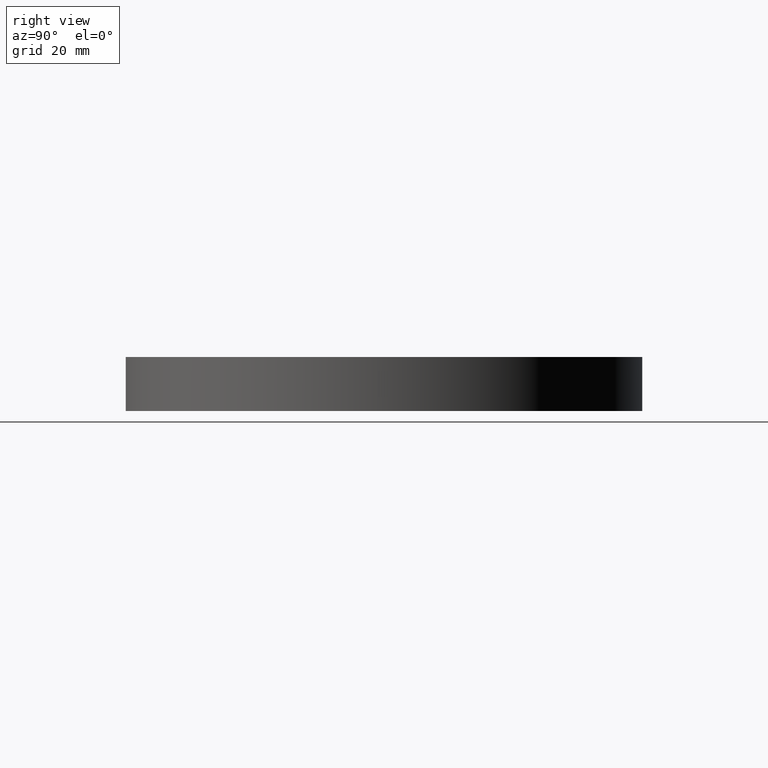
[diagram: clean part render]
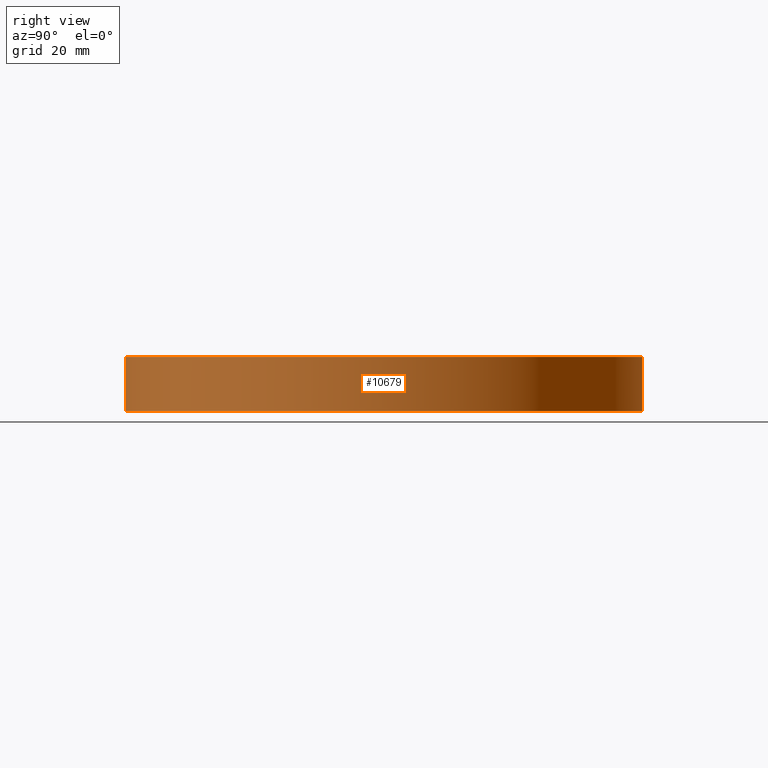
[diagram: same view with one face highlighted and labeled with its STEP entity id]
A machine part, right view. The second image highlights one B-rep face of the part: STEP entity #10679.
In plain terms, the highlighted cylindrical surface (partial cylindrical patch) has radius 57.5 mm, axis along (-0, -0, -1).
Its self-contained STEP definition (entity closure, byte-faithful):
#425 = AXIS2_PLACEMENT_3D ( 'NONE', #8660, #7016, #2937 ) ;
#1138 = VERTEX_POINT ( 'NONE', #10441 ) ;
#1173 = DIRECTION ( 'NONE',  ( -0.0000000000000000000, -0.0000000000000000000, -1.000000000000000000 ) ) ;
#1568 = CARTESIAN_POINT ( 'NONE',  ( 0.5000000000000000000, 57.49782604586020800, -5.999999999999998200 ) ) ;
#2510 = VECTOR ( 'NONE', #8754, 1000.000000000000000 ) ;
#2832 = CARTESIAN_POINT ( 'NONE',  ( 0.0000000000000000000, 0.0000000000000000000, 0.0000000000000000000 ) ) ;
#2937 = DIRECTION ( 'NONE',  ( -1.000000000000000000, 0.0000000000000000000, 0.0000000000000000000 ) ) ;
#4478 = EDGE_CURVE ( 'NONE', #5457, #7726, #10747, .T. ) ;
#4670 = ORIENTED_EDGE ( 'NONE', *, *, #7966, .F. ) ;
#4714 = LINE ( 'NONE', #7857, #2510 ) ;
#5097 = EDGE_CURVE ( 'NONE', #7726, #1138, #7064, .T. ) ;
#5440 = CYLINDRICAL_SURFACE ( 'NONE', #6971, 57.50000000000000000 ) ;
#5457 = VERTEX_POINT ( 'NONE', #8093 ) ;
#5826 = CARTESIAN_POINT ( 'NONE',  ( -0.5000000000000000000, 57.49782604586020800, -5.999999999999996400 ) ) ;
#5908 = EDGE_CURVE ( 'NONE', #6834, #1138, #4714, .T. ) ;
#6575 = DIRECTION ( 'NONE',  ( -0.0000000000000000000, -0.0000000000000000000, 1.000000000000000000 ) ) ;
#6748 = ORIENTED_EDGE ( 'NONE', *, *, #5908, .F. ) ;
#6834 = VERTEX_POINT ( 'NONE', #5826 ) ;
#6971 = AXIS2_PLACEMENT_3D ( 'NONE', #2832, #1173, #10402 ) ;
#7016 = DIRECTION ( 'NONE',  ( -0.0000000000000000000, -0.0000000000000000000, -1.000000000000000000 ) ) ;
#7064 = CIRCLE ( 'NONE', #10343, 57.50000000000000000 ) ;
#7126 = DIRECTION ( 'NONE',  ( -0.0000000000000000000, -0.0000000000000000000, -1.000000000000000000 ) ) ;
#7279 = CARTESIAN_POINT ( 'NONE',  ( 0.5000000000000000000, 57.49782604586020800, 6.000000000000003600 ) ) ;
#7726 = VERTEX_POINT ( 'NONE', #7279 ) ;
#7857 = CARTESIAN_POINT ( 'NONE',  ( -0.5000000000000000000, 57.49782604586020800, -5.999999999999998200 ) ) ;
#7938 = ORIENTED_EDGE ( 'NONE', *, *, #4478, .T. ) ;
#7966 = EDGE_CURVE ( 'NONE', #5457, #6834, #8866, .T. ) ;
#8093 = CARTESIAN_POINT ( 'NONE',  ( 0.5000000000000000000, 57.49782604586020800, -5.999999999999998200 ) ) ;
#8241 = VECTOR ( 'NONE', #6575, 1000.000000000000000 ) ;
#8337 = ORIENTED_EDGE ( 'NONE', *, *, #5097, .T. ) ;
#8660 = CARTESIAN_POINT ( 'NONE',  ( 0.0000000000000000000, 0.0000000000000000000, -5.999999999999996400 ) ) ;
#8754 = DIRECTION ( 'NONE',  ( -0.0000000000000000000, -0.0000000000000000000, 1.000000000000000000 ) ) ;
#8866 = CIRCLE ( 'NONE', #425, 57.50000000000000000 ) ;
#9341 = FACE_OUTER_BOUND ( 'NONE', #10766, .T. ) ;
#10343 = AXIS2_PLACEMENT_3D ( 'NONE', #10436, #7126, #10508 ) ;
#10402 = DIRECTION ( 'NONE',  ( -1.000000000000000000, 0.0000000000000000000, 0.0000000000000000000 ) ) ;
#10436 = CARTESIAN_POINT ( 'NONE',  ( 0.0000000000000000000, 0.0000000000000000000, 6.000000000000003600 ) ) ;
#10441 = CARTESIAN_POINT ( 'NONE',  ( -0.5000000000000000000, 57.49782604586020800, 6.000000000000005300 ) ) ;
#10508 = DIRECTION ( 'NONE',  ( -1.000000000000000000, 0.0000000000000000000, 0.0000000000000000000 ) ) ;
#10679 = ADVANCED_FACE ( 'NONE', ( #9341 ), #5440, .T. ) ;
#10747 = LINE ( 'NONE', #1568, #8241 ) ;
#10766 = EDGE_LOOP ( 'NONE', ( #4670, #7938, #8337, #6748 ) ) ;